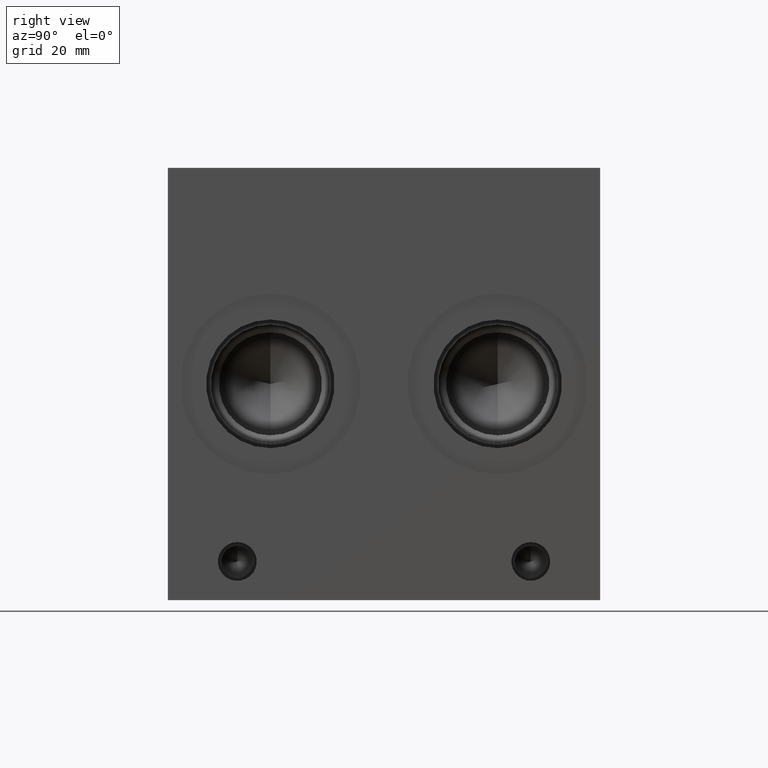
[diagram: clean part render]
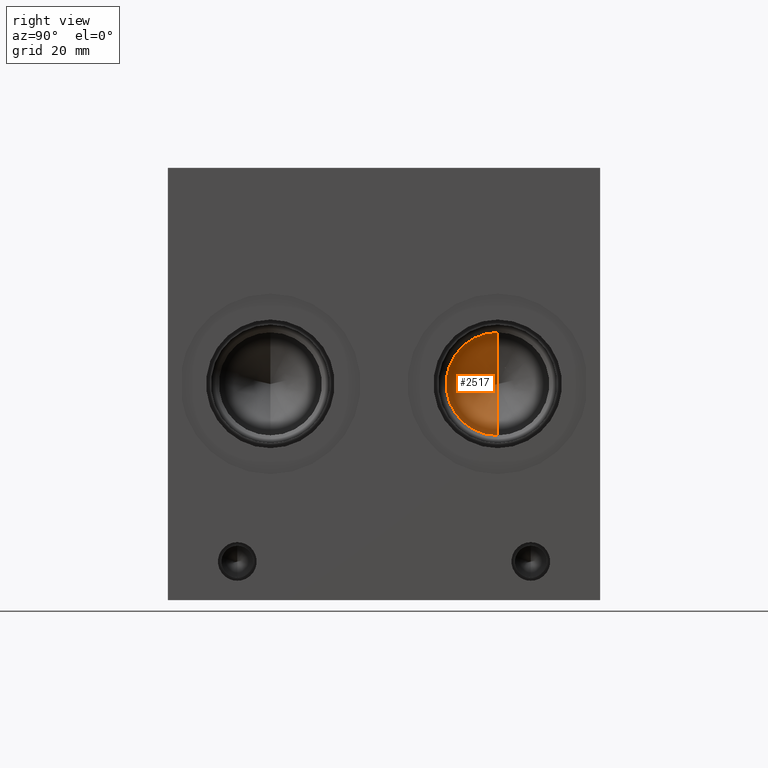
[diagram: same view with one face highlighted and labeled with its STEP entity id]
A machine part, right view. The second image highlights one B-rep face of the part: STEP entity #2517.
In plain terms, the highlighted conical surface has half-angle 60 deg.
Its self-contained STEP definition (entity closure, byte-faithful):
#2474=CARTESIAN_POINT('',(1.882005062252070,2.670000000000000,1.333000000000000));
#2475=VERTEX_POINT('',#2474);
#2476=CARTESIAN_POINT('',(1.882005062252070,2.670000000000000,2.167000000000000));
#2477=VERTEX_POINT('',#2476);
#2478=CARTESIAN_POINT('',(1.882005062252070,2.670000000000000,1.750000000000000));
#2479=DIRECTION('',(-1.0,0.0,0.0));
#2480=DIRECTION('',(0.0,-1.0,0.0));
#2481=AXIS2_PLACEMENT_3D('',#2478,#2479,#2480);
#2482=CIRCLE('',#2481,0.417000000000000);
#2483=EDGE_CURVE('',#2475,#2477,#2482,.T.);
#2495=CARTESIAN_POINT('',(2.218600269189622,2.670000000000000,1.750000000000000));
#2496=DIRECTION('',(1.0,0.0,0.0));
#2497=DIRECTION('',(0.0,-1.0,0.0));
#2498=AXIS2_PLACEMENT_3D('',#2495,#2496,#2497);
#2499=CONICAL_SURFACE('',#2498,1.000000000000000,59.999999999999993);
#2500=CARTESIAN_POINT('',(1.641250000000000,2.670000000000000,1.750000000000000));
#2501=VERTEX_POINT('',#2500);
#2502=CARTESIAN_POINT('',(1.882005062252070,2.670000000000000,2.167000000000000));
#2503=DIRECTION('',(-0.499999999999993,0.0,-0.866025403784443));
#2504=VECTOR('',#2503,0.481510124504146);
#2505=LINE('',#2502,#2504);
#2506=EDGE_CURVE('',#2477,#2501,#2505,.T.);
#2507=ORIENTED_EDGE('',*,*,#2506,.F.);
#2508=ORIENTED_EDGE('',*,*,#2483,.F.);
#2509=CARTESIAN_POINT('',(1.641250000000000,2.670000000000000,1.750000000000000));
#2510=DIRECTION('',(0.499999999999994,0.0,-0.866025403784442));
#2511=VECTOR('',#2510,0.481510124504146);
#2512=LINE('',#2509,#2511);
#2513=EDGE_CURVE('',#2501,#2475,#2512,.T.);
#2514=ORIENTED_EDGE('',*,*,#2513,.F.);
#2515=EDGE_LOOP('',(#2507,#2508,#2514));
#2516=FACE_OUTER_BOUND('',#2515,.T.);
#2517=ADVANCED_FACE('',(#2516),#2499,.T.);